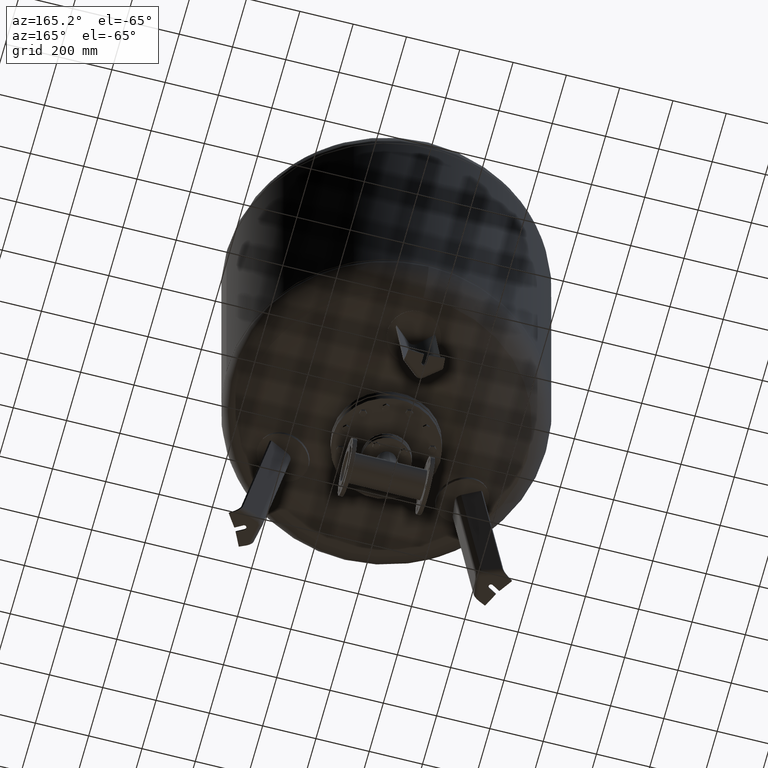
[diagram: clean part render]
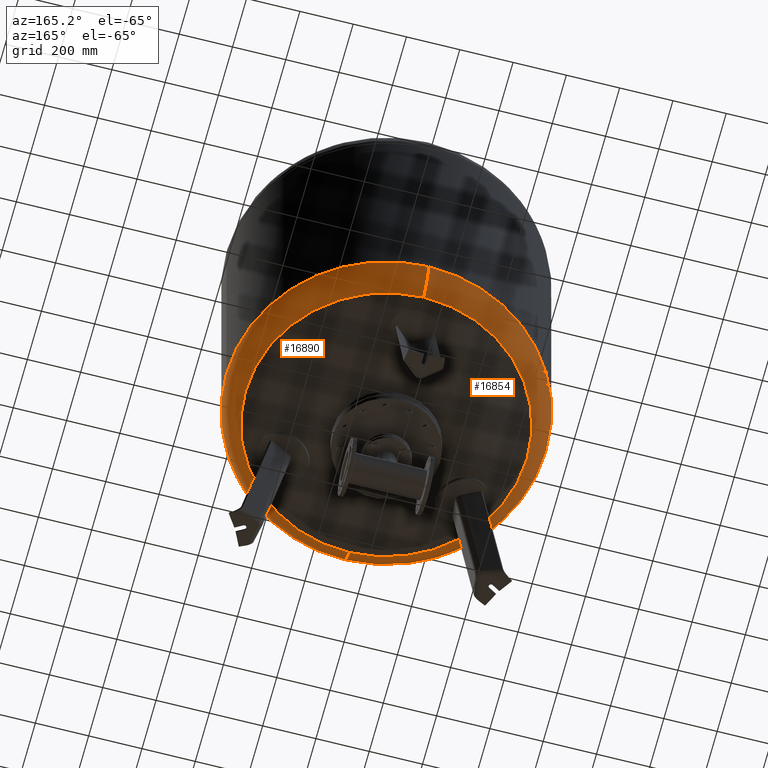
[diagram: same view with one multi-face feature highlighted, each face labeled with its STEP entity id]
A machine part, auxiliary view. The highlighted faces form ONE feature: a constant-radius fillet chain: 2 tangent blend faces with common blend radius 127 mm. The faces share edges in the B-rep.
Their STEP definitions:
[1] entity #16854 (Torus):
#16759=CARTESIAN_POINT('',(-600.0,-4.336858E-014,695.087542566272190));
#16760=VERTEX_POINT('',#16759);
#16784=CARTESIAN_POINT('',(-1.445307E-013,600.0,695.087542566272420));
#16785=VERTEX_POINT('',#16784);
#16793=CARTESIAN_POINT('',(-3.551733E-014,-4.336858E-014,695.087542566272300));
#16794=DIRECTION('',(0.0,0.0,1.0));
#16795=DIRECTION('',(-1.0,0.0,0.0));
#16796=AXIS2_PLACEMENT_3D('',#16793,#16794,#16795);
#16797=CIRCLE('',#16796,600.0);
#16798=EDGE_CURVE('',#16785,#16760,#16797,.T.);
#16803=CARTESIAN_POINT('',(-7.105427E-014,-4.336858E-014,695.087542566272300));
#16804=DIRECTION('',(-1.504413E-016,-1.836970E-016,1.0));
#16805=DIRECTION('',(0.0,-1.0,0.0));
#16806=AXIS2_PLACEMENT_3D('',#16803,#16804,#16805);
#16807=TOROIDAL_SURFACE('',#16806,472.999999999999890,127.000000000000010);
#16808=CARTESIAN_POINT('',(-7.105427E-014,-600.0,695.087542566272190));
#16809=VERTEX_POINT('',#16808);
#16810=CARTESIAN_POINT('',(-5.387807E-014,-528.621296296296240,580.915429516194880));
#16811=VERTEX_POINT('',#16810);
#16812=CARTESIAN_POINT('',(-7.105427E-014,-472.999999999999940,695.087542566272190));
#16813=DIRECTION('',(1.0,0.0,0.0));
#16814=DIRECTION('',(0.0,-1.0,0.0));
#16815=AXIS2_PLACEMENT_3D('',#16812,#16813,#16814);
#16816=CIRCLE('',#16815,127.000000000000010);
#16817=EDGE_CURVE('',#16809,#16811,#16816,.T.);
#16818=ORIENTED_EDGE('',*,*,#16817,.F.);
#16819=CARTESIAN_POINT('',(-3.551733E-014,-4.336858E-014,695.087542566272300));
#16820=DIRECTION('',(0.0,0.0,1.0));
#16821=DIRECTION('',(-1.0,0.0,0.0));
#16822=AXIS2_PLACEMENT_3D('',#16819,#16820,#16821);
#16823=CIRCLE('',#16822,600.0);
#16824=EDGE_CURVE('',#16760,#16809,#16823,.T.);
#16825=ORIENTED_EDGE('',*,*,#16824,.F.);
#16826=ORIENTED_EDGE('',*,*,#16798,.F.);
#16827=CARTESIAN_POINT('',(-1.186134E-013,528.621296296296240,580.915429516195100));
#16828=VERTEX_POINT('',#16827);
#16829=CARTESIAN_POINT('',(-1.289782E-013,472.999999999999830,695.087542566272420));
#16830=DIRECTION('',(-1.0,0.0,0.0));
#16831=DIRECTION('',(0.0,1.0,0.0));
#16832=AXIS2_PLACEMENT_3D('',#16829,#16830,#16831);
#16833=CIRCLE('',#16832,127.000000000000010);
#16834=EDGE_CURVE('',#16785,#16828,#16833,.T.);
#16835=ORIENTED_EDGE('',*,*,#16834,.T.);
#16836=CARTESIAN_POINT('',(-528.621296296296240,-2.239550E-014,580.915429516194990));
#16837=VERTEX_POINT('',#16836);
#16838=CARTESIAN_POINT('',(-1.834112E-014,-2.239550E-014,580.915429516194990));
#16839=DIRECTION('',(0.0,0.0,1.0));
#16840=DIRECTION('',(-1.0,0.0,0.0));
#16841=AXIS2_PLACEMENT_3D('',#16838,#16839,#16840);
#16842=CIRCLE('',#16841,528.621296296296240);
#16843=EDGE_CURVE('',#16828,#16837,#16842,.T.);
#16844=ORIENTED_EDGE('',*,*,#16843,.T.);
#16845=CARTESIAN_POINT('',(-1.834112E-014,-2.239550E-014,580.915429516194990));
#16846=DIRECTION('',(0.0,0.0,1.0));
#16847=DIRECTION('',(-1.0,0.0,0.0));
#16848=AXIS2_PLACEMENT_3D('',#16845,#16846,#16847);
#16849=CIRCLE('',#16848,528.621296296296240);
#16850=EDGE_CURVE('',#16837,#16811,#16849,.T.);
#16851=ORIENTED_EDGE('',*,*,#16850,.T.);
#16852=EDGE_LOOP('',(#16818,#16825,#16826,#16835,#16844,#16851));
#16853=FACE_OUTER_BOUND('',#16852,.T.);
#16854=ADVANCED_FACE('',(#16853),#16807,.T.);
[2] entity #16890 (Torus):
#16776=CARTESIAN_POINT('',(599.999999999999890,3.010780E-014,695.087542566272300));
#16777=VERTEX_POINT('',#16776);
#16784=CARTESIAN_POINT('',(-1.445307E-013,600.0,695.087542566272420));
#16785=VERTEX_POINT('',#16784);
#16786=CARTESIAN_POINT('',(-3.551733E-014,-4.336858E-014,695.087542566272300));
#16787=DIRECTION('',(0.0,0.0,1.0));
#16788=DIRECTION('',(-1.0,0.0,0.0));
#16789=AXIS2_PLACEMENT_3D('',#16786,#16787,#16788);
#16790=CIRCLE('',#16789,600.0);
#16791=EDGE_CURVE('',#16777,#16785,#16790,.T.);
#16808=CARTESIAN_POINT('',(-7.105427E-014,-600.0,695.087542566272190));
#16809=VERTEX_POINT('',#16808);
#16810=CARTESIAN_POINT('',(-5.387807E-014,-528.621296296296240,580.915429516194880));
#16811=VERTEX_POINT('',#16810);
#16812=CARTESIAN_POINT('',(-7.105427E-014,-472.999999999999940,695.087542566272190));
#16813=DIRECTION('',(1.0,0.0,0.0));
#16814=DIRECTION('',(0.0,-1.0,0.0));
#16815=AXIS2_PLACEMENT_3D('',#16812,#16813,#16814);
#16816=CIRCLE('',#16815,127.000000000000010);
#16817=EDGE_CURVE('',#16809,#16811,#16816,.T.);
#16827=CARTESIAN_POINT('',(-1.186134E-013,528.621296296296240,580.915429516195100));
#16828=VERTEX_POINT('',#16827);
#16829=CARTESIAN_POINT('',(-1.289782E-013,472.999999999999830,695.087542566272420));
#16830=DIRECTION('',(-1.0,0.0,0.0));
#16831=DIRECTION('',(0.0,1.0,0.0));
#16832=AXIS2_PLACEMENT_3D('',#16829,#16830,#16831);
#16833=CIRCLE('',#16832,127.000000000000010);
#16834=EDGE_CURVE('',#16785,#16828,#16833,.T.);
#16862=CARTESIAN_POINT('',(-1.834112E-014,-2.239550E-014,580.915429516194990));
#16863=DIRECTION('',(0.0,0.0,1.0));
#16864=DIRECTION('',(-1.0,0.0,0.0));
#16865=AXIS2_PLACEMENT_3D('',#16862,#16863,#16864);
#16866=CIRCLE('',#16865,528.621296296296240);
#16867=EDGE_CURVE('',#16811,#16828,#16866,.T.);
#16872=CARTESIAN_POINT('',(-7.105427E-014,-4.336858E-014,695.087542566272300));
#16873=DIRECTION('',(-1.504413E-016,-1.836970E-016,1.0));
#16874=DIRECTION('',(0.0,-1.0,0.0));
#16875=AXIS2_PLACEMENT_3D('',#16872,#16873,#16874);
#16876=TOROIDAL_SURFACE('',#16875,472.999999999999890,127.000000000000010);
#16877=ORIENTED_EDGE('',*,*,#16817,.T.);
#16878=ORIENTED_EDGE('',*,*,#16867,.T.);
#16879=ORIENTED_EDGE('',*,*,#16834,.F.);
#16880=ORIENTED_EDGE('',*,*,#16791,.F.);
#16881=CARTESIAN_POINT('',(-3.551733E-014,-4.336858E-014,695.087542566272300));
#16882=DIRECTION('',(0.0,0.0,1.0));
#16883=DIRECTION('',(-1.0,0.0,0.0));
#16884=AXIS2_PLACEMENT_3D('',#16881,#16882,#16883);
#16885=CIRCLE('',#16884,600.0);
#16886=EDGE_CURVE('',#16809,#16777,#16885,.T.);
#16887=ORIENTED_EDGE('',*,*,#16886,.F.);
#16888=EDGE_LOOP('',(#16877,#16878,#16879,#16880,#16887));
#16889=FACE_OUTER_BOUND('',#16888,.T.);
#16890=ADVANCED_FACE('',(#16889),#16876,.T.);